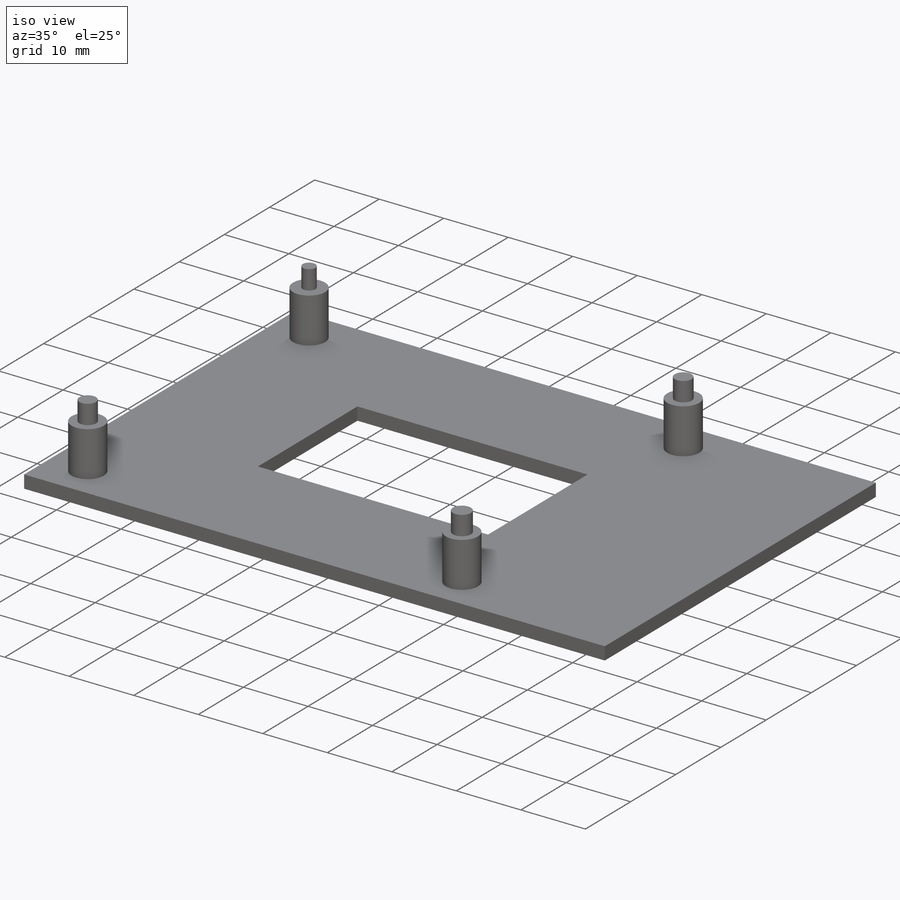
[diagram: iso view]
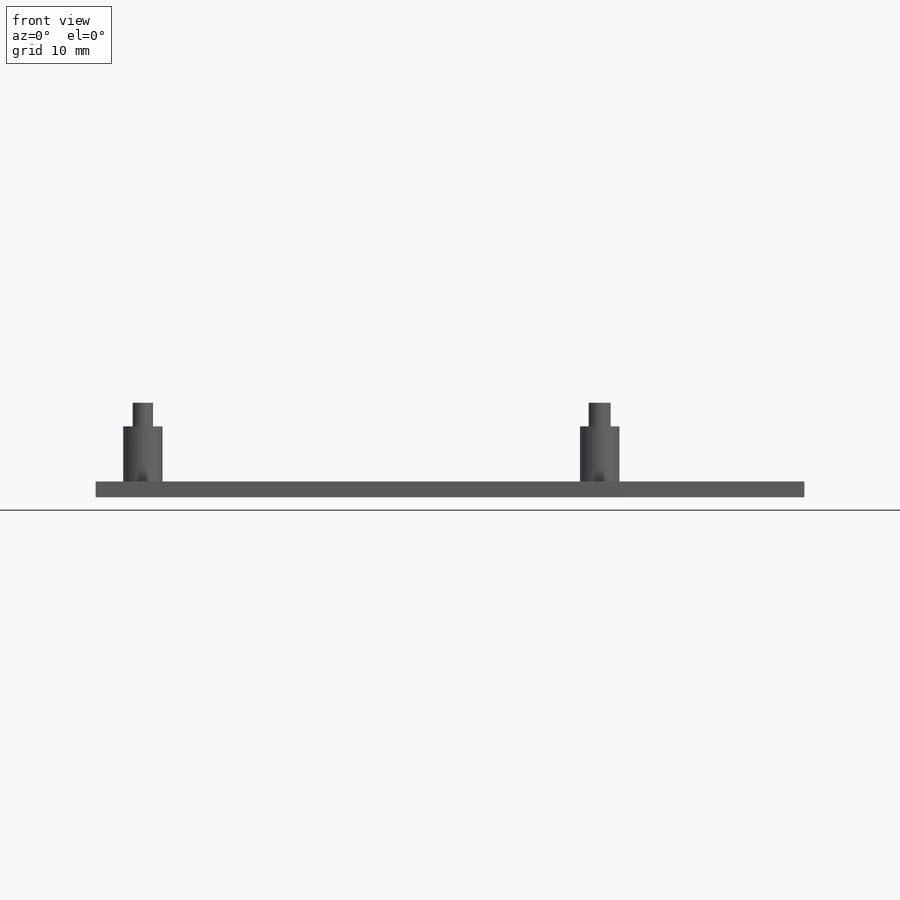
[diagram: front view]
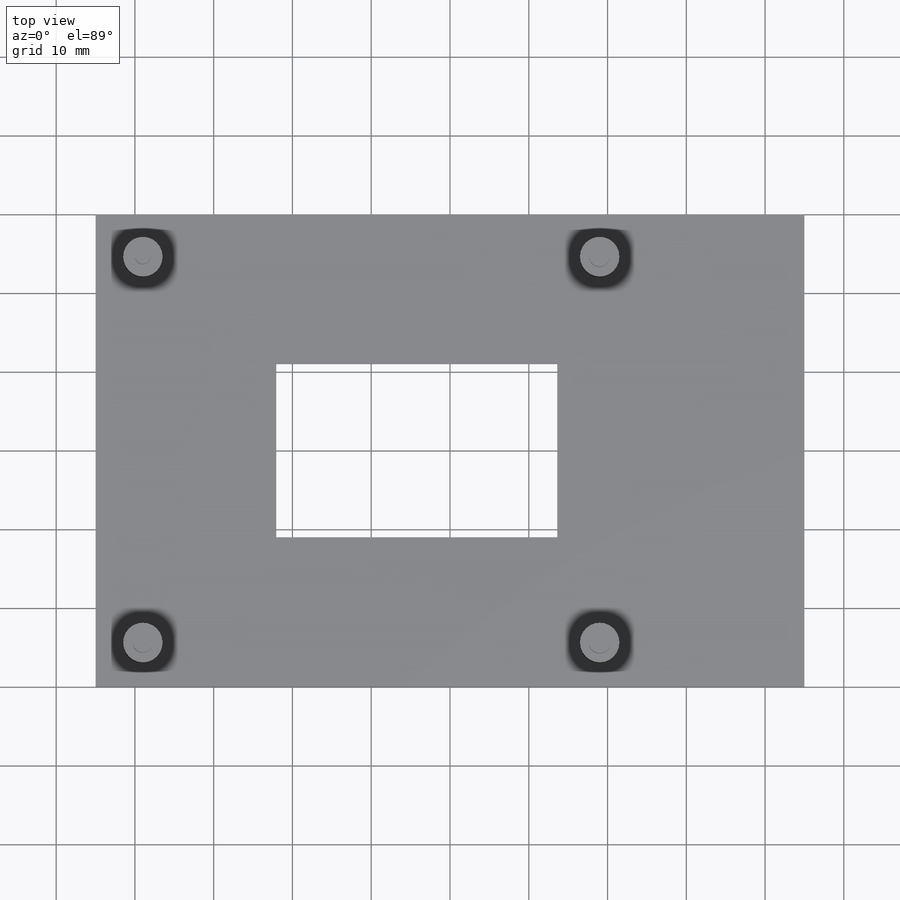
[diagram: top view]
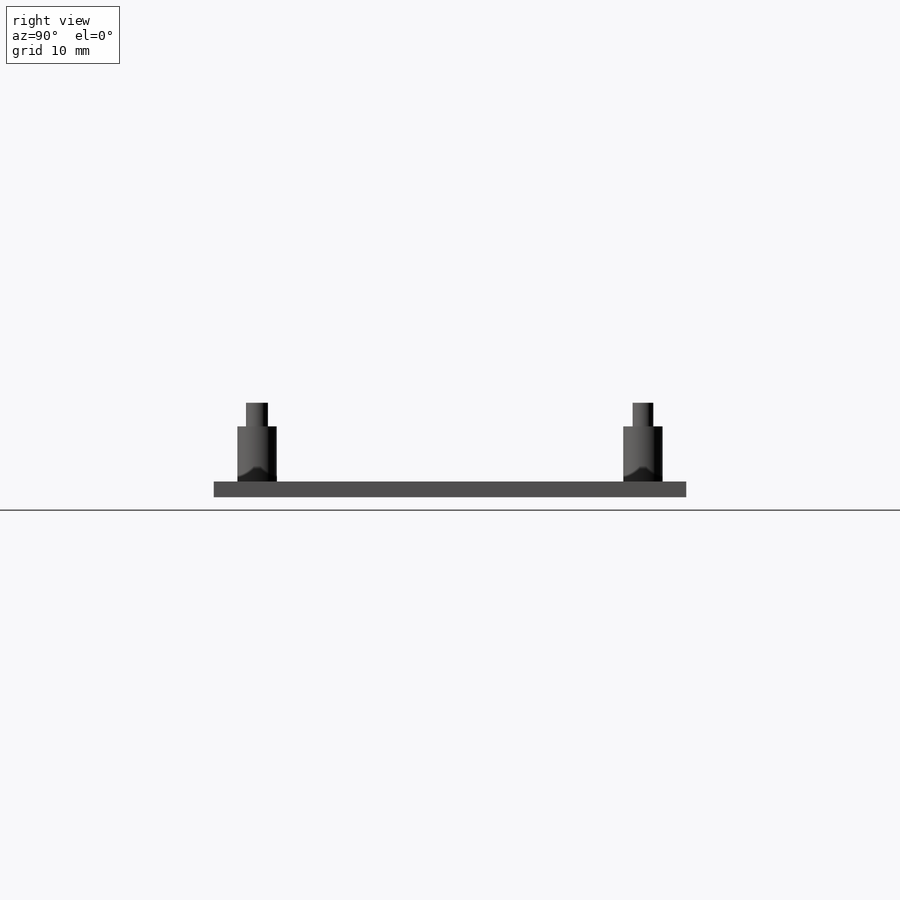
[diagram: right view]
SOLIDWORKS PART (.sldprt)
format: sldprt  version: not decoded by parser v0  size: 172,032 bytes
history: native  units: mm
features: sketch x4, plane x3, extrude x3, material x1, cut_extrude x1 (+8 scaffold rows collapsed)
feature tree (20):
  scaffold x8  (default folders/planes/origin — collapsed)
  material  "Material <sin especificar>"
  plane  "Alzado"
  plane  "Planta"
  plane  "Vista lateral"
  sketch  "Croquis1"  dims[D1=90.0mm D2=60.0mm]
  extrude  "Saliente-Extruir1"  Depth=2mm
  sketch  "Croquis2"  dims[D6=5.0mm D1=58.0mm D2=49.0mm D3=3.5mm D4=3.5mm D5=23.5mm]
  extrude  "Saliente-Extruir2"  Depth=7mm
  sketch  "Croquis3"
  extrude  "Saliente-Extruir3"  Depth=3mm
  sketch  "Croquis4"
  cut_extrude  "Cortar-Extruir1"  Depth=3mm
decode coverage: 6 of 8 modeling features carry decoded parameters
note: suppression state not decoded; provenance and decode notes live in map.json
